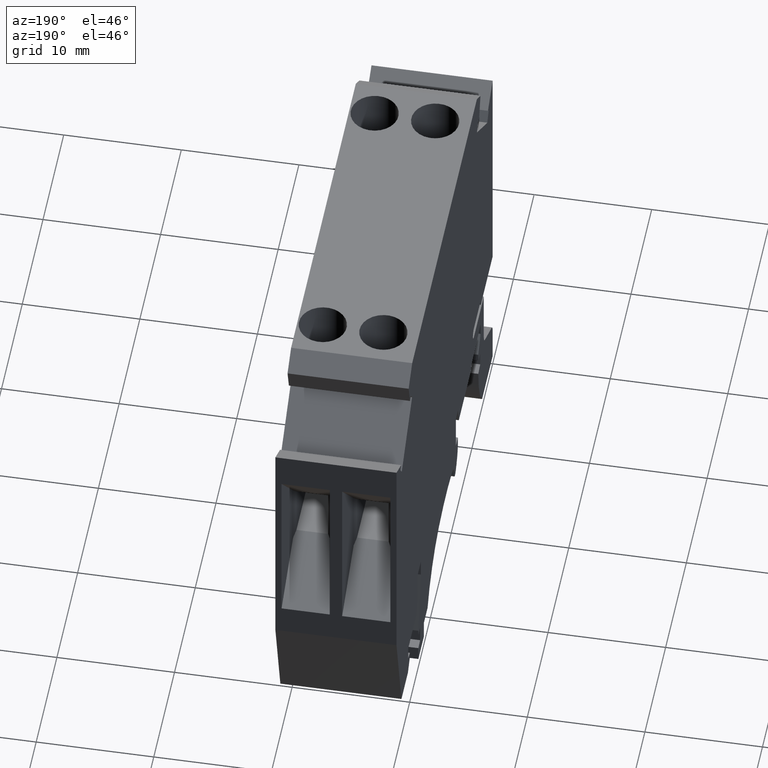
[diagram: clean part render]
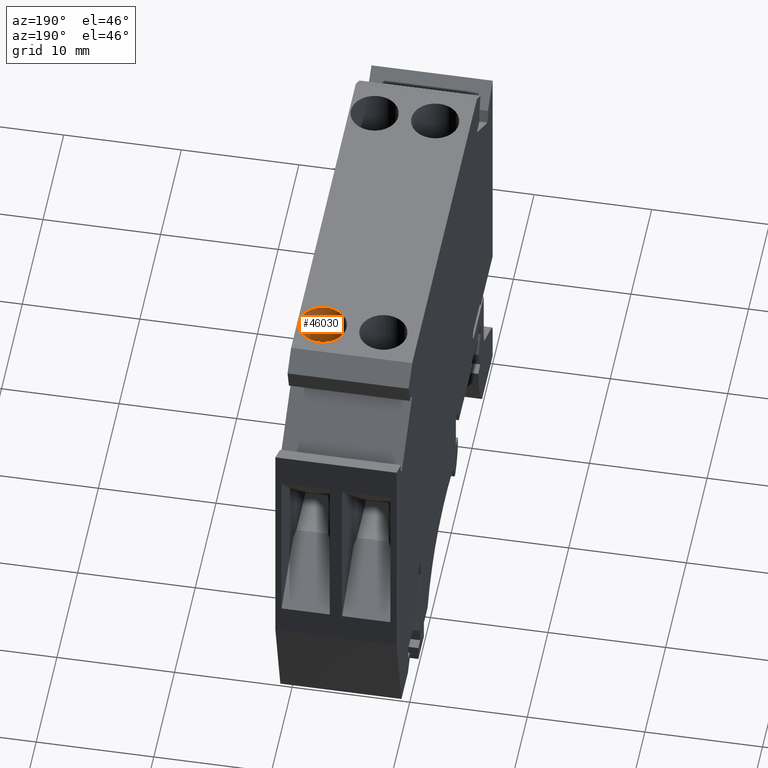
[diagram: same view with one face highlighted and labeled with its STEP entity id]
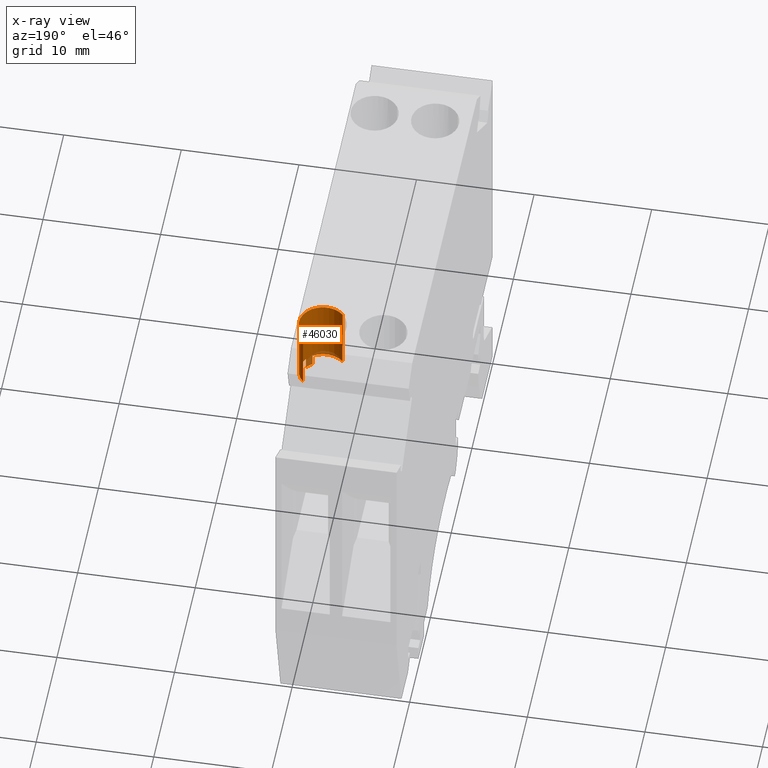
[diagram: x-ray of the same camera — body ghosted, the highlighted face saturated]
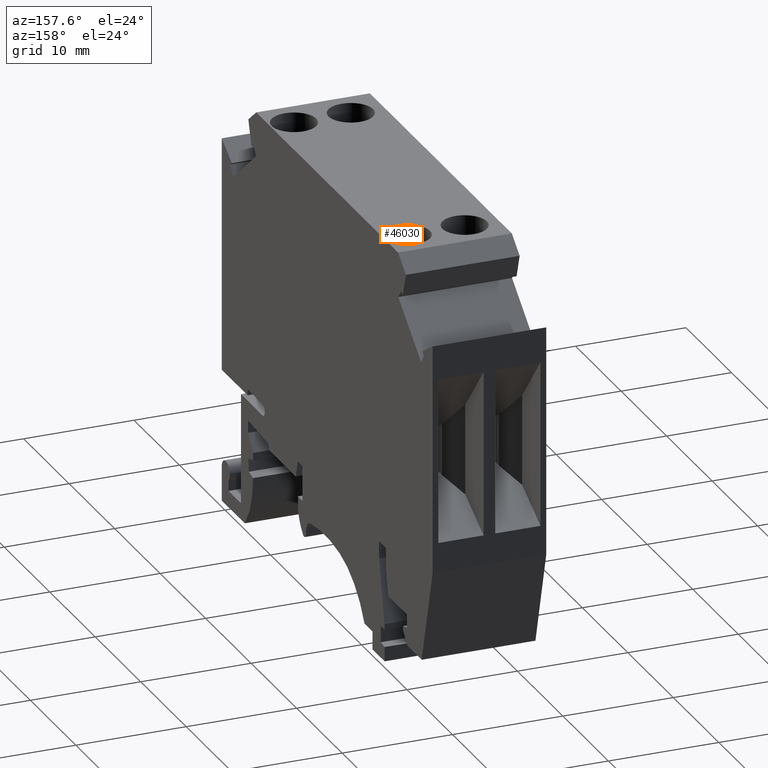
[diagram: same view with one face highlighted and labeled with its STEP entity id]
A machine part, auxiliary view. The second image highlights one B-rep face of the part: STEP entity #46030.
The next image is the same camera in x-ray: the body ghosted, the highlighted face saturated — about 6% of this face is hidden behind the body in this view.
A second angle (auxiliary view) of the same face is appended — the face is thin or edge-on in the first view.
In plain terms, the highlighted cylindrical surface (edge-blend (fillet) strip) has radius 2.025 mm, axis along (-0, -0, 1).
Its self-contained STEP definition (entity closure, byte-faithful):
#27500=CARTESIAN_POINT('',(-9.17709853380769,42.9295237515583,
8.15000000000001));
#27510=DIRECTION('',(-1.23259516440783E-32,1.,-2.46519032881566E-32));
#27520=DIRECTION('',(0.707106781186548,-2.46519032881566E-32,
0.707106781186547));
#27530=AXIS2_PLACEMENT_3D('',#27500,#27510,#27520);
#27540=CIRCLE('',#27530,2.025);
#27550=CARTESIAN_POINT('',(-11.1806523298767,42.9295237515583,
8.443933982822));
#27560=VERTEX_POINT('',#27550);
#27570=CARTESIAN_POINT('',(-7.74520730190493,42.9295237515583,
9.58189123190276));
#27580=VERTEX_POINT('',#27570);
#27590=EDGE_CURVE('',#27560,#27580,#27540,.T.);
#27610=CARTESIAN_POINT('',(-10.6089897657104,42.9295237515583,
6.71810876809725));
#27620=VERTEX_POINT('',#27610);
#27650=EDGE_CURVE('',#27620,#27560,#27540,.T.);
#45370=CARTESIAN_POINT('',(-9.17709853380769,42.9295237515583,
8.15000000000001));
#45380=DIRECTION('',(-1.23259516440783E-32,1.,-2.46519032881566E-32));
#45390=DIRECTION('',(0.707106781186548,-2.46519032881566E-32,
0.707106781186547));
#45400=AXIS2_PLACEMENT_3D('',#45370,#45380,#45390);
#45410=CYLINDRICAL_SURFACE('',#45400,2.025);
#45420=CARTESIAN_POINT('',(-9.17709853380769,37.2755174006122,
8.15000000000001));
#45430=DIRECTION('',(-1.23259516440783E-32,1.,-2.46519032881566E-32));
#45440=DIRECTION('',(0.707106781186548,2.61472919763157E-32,
0.707106781186547));
#45450=AXIS2_PLACEMENT_3D('',#45420,#45430,#45440);
#45460=CIRCLE('',#45450,2.025);
#45470=CARTESIAN_POINT('',(-10.3399524311492,37.2755174006122,
9.80782864417214));
#45480=VERTEX_POINT('',#45470);
#45490=CARTESIAN_POINT('',(-7.74520730190493,37.2755174006122,
9.58189123190276));
#45500=VERTEX_POINT('',#45490);
#45510=EDGE_CURVE('',#45480,#45500,#45460,.T.);
#45520=ORIENTED_EDGE('',*,*,#45510,.F.);
#45530=CARTESIAN_POINT('',(-7.74520730190493,42.9295237515583,
9.58189123190276));
#45540=DIRECTION('',(-1.23259516440783E-32,1.,-2.46519032881566E-32));
#45550=VECTOR('',#45540,1.);
#45560=LINE('',#45530,#45550);
#45570=EDGE_CURVE('',#45500,#27580,#45560,.T.);
#45580=ORIENTED_EDGE('',*,*,#45570,.F.);
#45590=ORIENTED_EDGE('',*,*,#27590,.T.);
#45600=ORIENTED_EDGE('',*,*,#27650,.T.);
#45610=CARTESIAN_POINT('',(-10.6089897657104,42.9295237515583,
6.71810876809725));
#45620=DIRECTION('',(-1.23259516440783E-32,1.,-2.46519032881566E-32));
#45630=VECTOR('',#45620,1.);
#45640=LINE('',#45610,#45630);
#45650=CARTESIAN_POINT('',(-10.6089897657104,37.2755174006122,
6.71810876809725));
#45660=VERTEX_POINT('',#45650);
#45670=EDGE_CURVE('',#45660,#27620,#45640,.T.);
#45680=ORIENTED_EDGE('',*,*,#45670,.T.);
#45690=CARTESIAN_POINT('',(-9.17709853380769,37.2755174006122,
8.15000000000001));
#45700=DIRECTION('',(-1.23259516440783E-32,1.,-2.46519032881566E-32));
#45710=DIRECTION('',(0.707106781186548,2.61472919763157E-32,
0.707106781186547));
#45720=AXIS2_PLACEMENT_3D('',#45690,#45700,#45710);
#45730=CIRCLE('',#45720,2.025);
#45740=CARTESIAN_POINT('',(-10.8349271779798,37.2755174006122,
9.31285389734155));
#45750=VERTEX_POINT('',#45740);
#45760=EDGE_CURVE('',#45660,#45750,#45730,.T.);
#45770=ORIENTED_EDGE('',*,*,#45760,.F.);
#45780=CARTESIAN_POINT('',(-10.8349271779798,42.9295237515583,
9.31285389734155));
#45790=DIRECTION('',(-1.23259516440783E-32,1.,-2.46519032881566E-32));
#45800=VECTOR('',#45790,1.);
#45810=LINE('',#45780,#45800);
#45820=CARTESIAN_POINT('',(-10.8349271779798,36.2755174006122,
9.31285389734155));
#45830=VERTEX_POINT('',#45820);
#45840=EDGE_CURVE('',#45830,#45750,#45810,.T.);
#45850=ORIENTED_EDGE('',*,*,#45840,.T.);
#45860=CARTESIAN_POINT('',(-9.17709853380769,36.2755174006122,
8.15000000000001));
#45870=DIRECTION('',(-1.23259516440783E-32,1.,-2.46519032881566E-32));
#45880=DIRECTION('',(0.707106781186548,2.61472919763157E-32,
0.707106781186547));
#45890=AXIS2_PLACEMENT_3D('',#45860,#45870,#45880);
#45900=CIRCLE('',#45890,2.025);
#45910=CARTESIAN_POINT('',(-10.3399524311492,36.2755174006122,
9.80782864417214));
#45920=VERTEX_POINT('',#45910);
#45930=EDGE_CURVE('',#45830,#45920,#45900,.T.);
#45940=ORIENTED_EDGE('',*,*,#45930,.F.);
#45950=CARTESIAN_POINT('',(-10.3399524311492,42.9295237515583,
9.80782864417214));
#45960=DIRECTION('',(-1.23259516440783E-32,1.,-2.46519032881566E-32));
#45970=VECTOR('',#45960,1.);
#45980=LINE('',#45950,#45970);
#45990=EDGE_CURVE('',#45920,#45480,#45980,.T.);
#46000=ORIENTED_EDGE('',*,*,#45990,.F.);
#46010=EDGE_LOOP('',(#46000,#45940,#45850,#45770,#45680,#45600,#45590,
#45580,#45520));
#46020=FACE_OUTER_BOUND('',#46010,.T.);
#46030=ADVANCED_FACE('',(#46020),#45410,.F.);